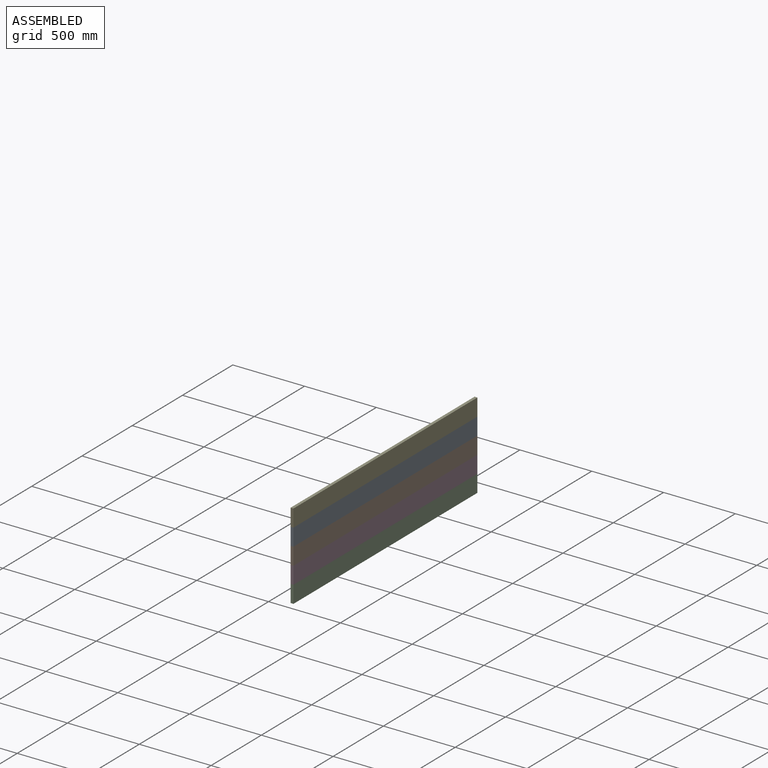
[diagram: assembled view]
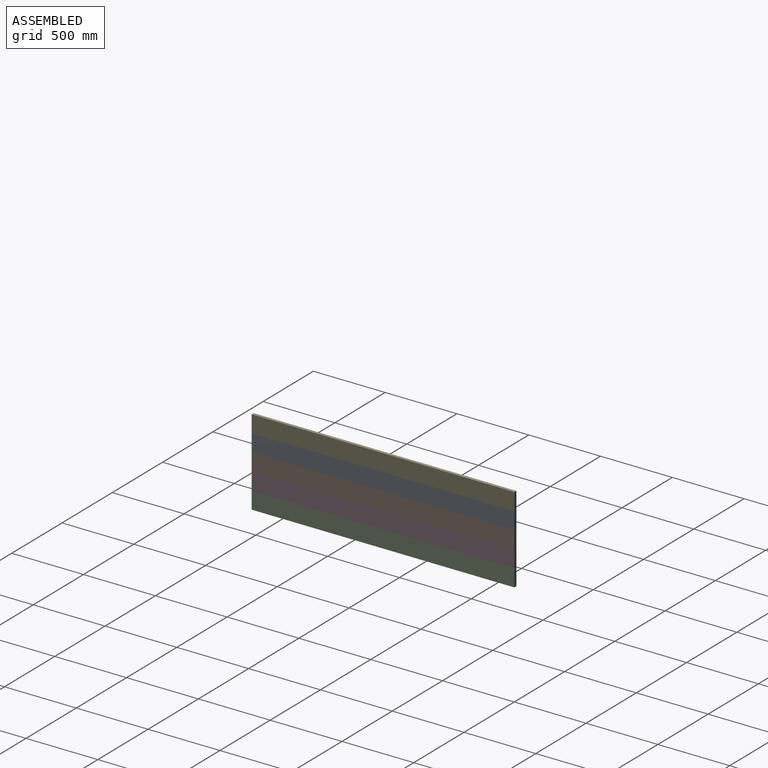
[diagram: assembled view, second angle]
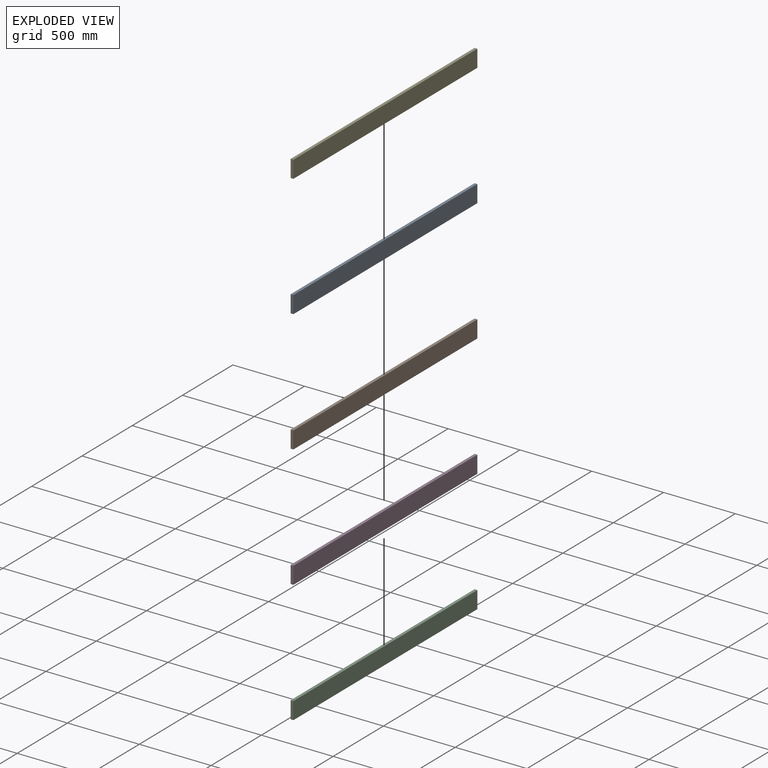
[diagram: exploded view]
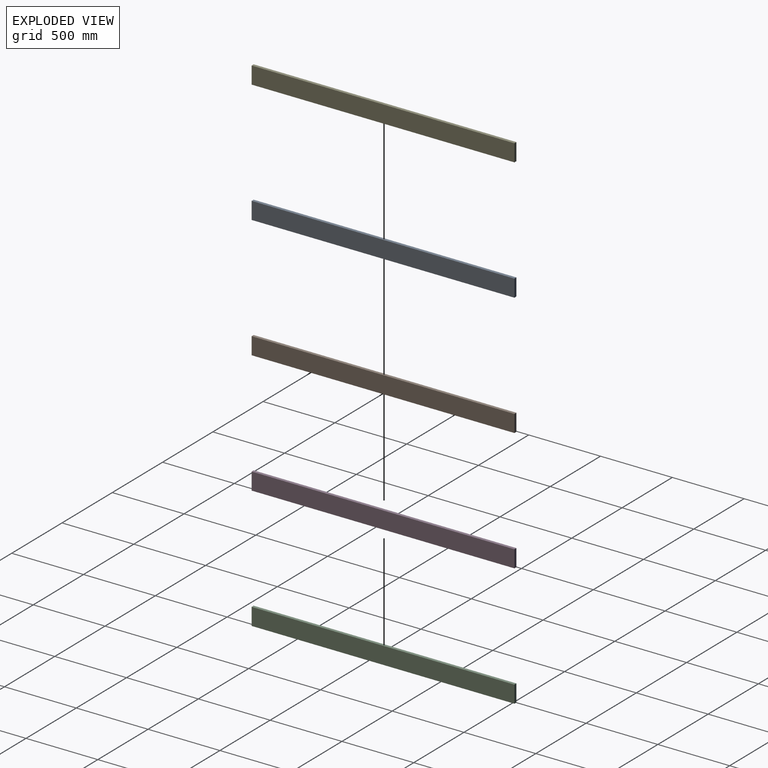
[diagram: exploded view, second angle]
ASSEMBLY  parts=5 mates=4
PART A: 6 faces, bbox 20x1830x120 mm
  f0: plane 1830x20mm, normal (0,0,1), area 36600mm2, adj f1,f3,f4,f5
  f1: plane 1830x120mm, normal (-1,0,0), area 219600mm2, adj f0,f2,f4,f5
  f2: plane 1830x20mm, normal (0,0,-1), area 36600mm2, adj f1,f3,f4,f5
  f3: plane 1830x120mm, normal (1,0,0), area 219600mm2, adj f0,f2,f4,f5
  f4: plane 120x20mm, normal (0,1,0), area 2400mm2, adj f0,f1,f2,f3
  f5: plane 120x20mm, normal (0,-1,0), area 2400mm2, adj f0,f1,f2,f3
PART B: same geometry as A
PART C: same geometry as A
PART D: same geometry as A
PART E: same geometry as A
PLACE A t=(-662.91,-1280.17,451.42)mm
PLACE B t=(-662.91,-1280.17,331.42)mm
PLACE C t=(-662.91,-1280.17,91.42)mm
PLACE D rot(axis=(0,0,1),180deg) t=(-1217.63,549.83,211.42)mm
PLACE E t=(-662.91,-1280.17,571.42)mm
MATE fastened B.f0 <-> A.f2  axis (0,0,1) through (-930.27,-1280.17,283.27)mm
MATE fastened A.f0 <-> E.f2  axis (0,0,1) through (-930.27,-1280.17,403.27)mm
MATE fastened C.f0 <-> D.f2  axis (0,0,1) through (-950.27,549.83,43.27)mm
MATE fastened D.f0 <-> B.f2  axis (0,0,1) through (-950.27,549.83,163.27)mm
